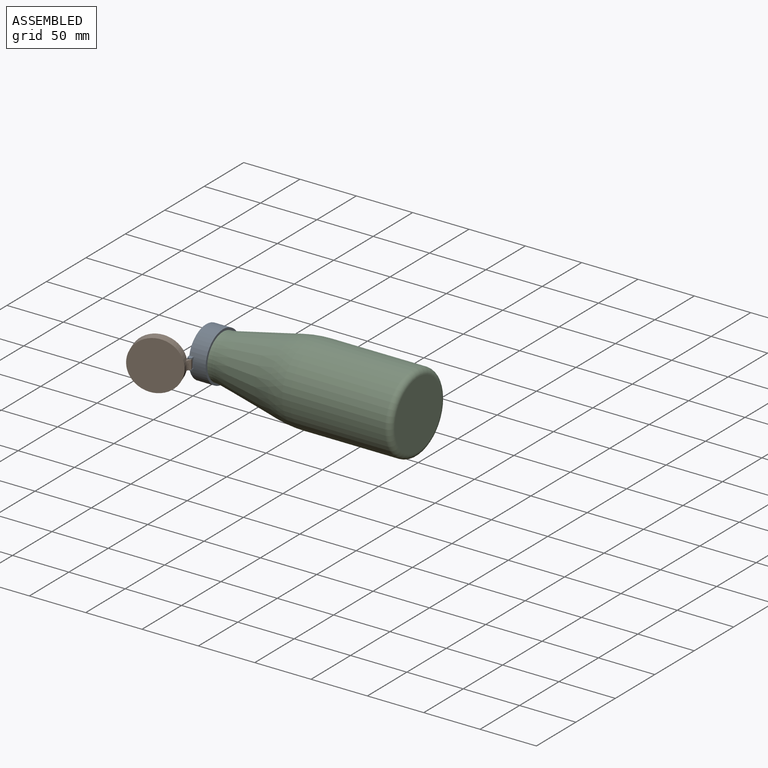
[diagram: assembled view]
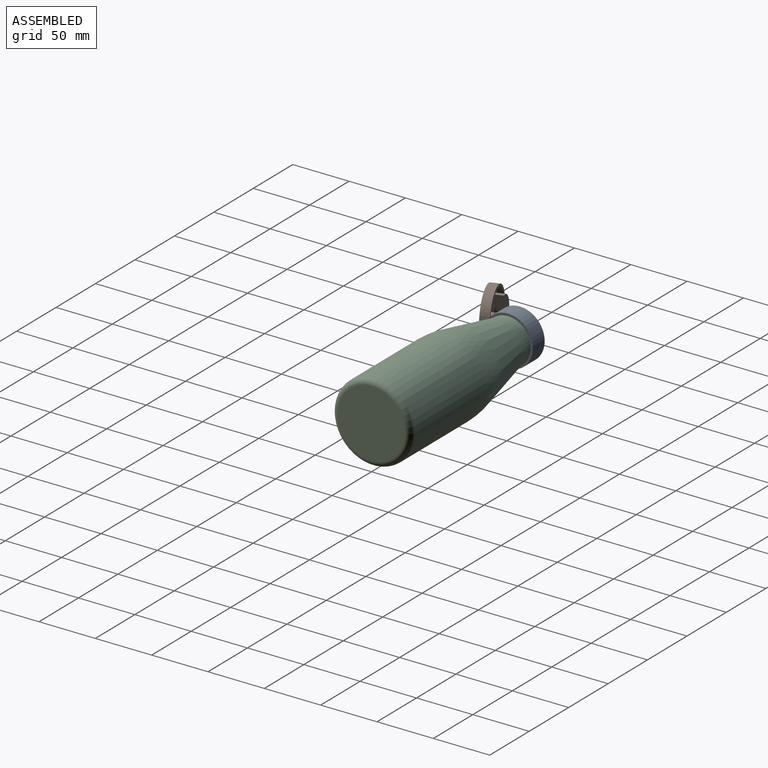
[diagram: assembled view, second angle]
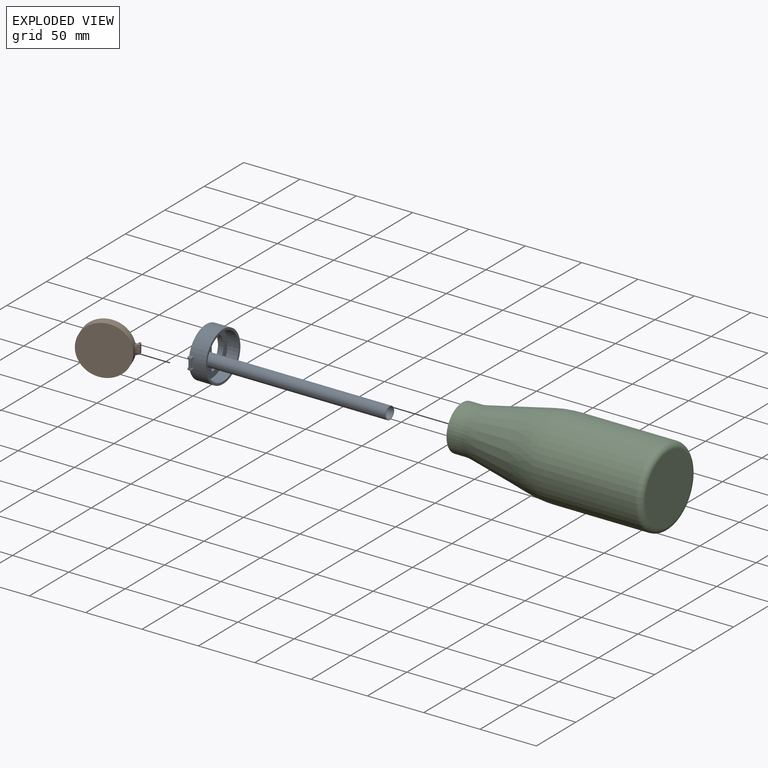
[diagram: exploded view]
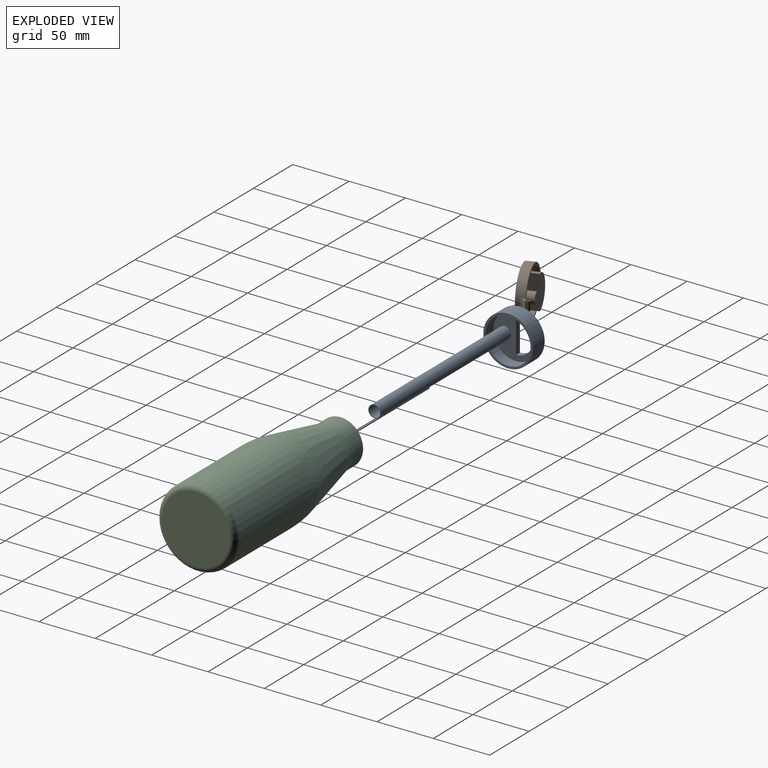
[diagram: exploded view, second angle]
ASSEMBLY  parts=3 mates=2
PART A: 20 faces, bbox 44x47x170 mm
  f0: plane 45x44mm, normal (0,0,1), area 1092.5mm2, adj f3,f4,f5,f6,f11,f12,f14,f15
  f1: plane 5x1.58mm, normal (0,0,-1), area 2mm2, adj f4,f11,f14,f15,f19
  f2: plane 40x40mm, normal (0,0,-1), area 808.2mm2, adj f3,f6,f7,f9
  f3: plane 30x5mm, normal (0,-1,0), area 150mm2, adj f0,f2,f6
  f4: cylinder r=22mm len=44mm, axis (0,0,-1), area 2033.1mm2, adj f0,f1,f8,f11,f12,f13
  f5: cylinder r=5mm len=170mm, axis (0,0,-1), area 5340.7mm2, adj f0,f10
  f6: cylinder r=15mm len=30mm, axis (0,0,-1), area 235.6mm2, adj f0,f2,f3
  f7: cylinder r=20mm len=40mm, axis (0,0,1), area 1256.6mm2, adj f2,f8
  f8: plane 44x44mm, normal (0,0,-1), area 263.9mm2, adj f4,f7
  f9: cylinder r=5.5mm len=165mm, axis (0,0,1), area 5702mm2, adj f2,f10
  f10: plane 11x11mm, normal (0,0,-1), area 16.5mm2, adj f5,f9
  f11: plane 4x3.58mm, normal (-1,0,0), area 12.6mm2, adj f0,f1,f4,f19
  f12: plane 4x3.58mm, normal (1,0,0), area 12.6mm2, adj f0,f4,f13,f18
  f13: plane 5x1.58mm, normal (0,0,-1), area 2mm2, adj f4,f12,f15,f16,f18
  f14: plane 4x3mm, normal (1,0,0), area 7.1mm2, adj f0,f1,f15,f17,f19
  f15: plane 8x4mm, normal (0,1,0), area 32mm2, adj f0,f1,f13,f14,f16
  f16: plane 4x3mm, normal (-1,0,0), area 7.1mm2, adj f0,f13,f15,f17,f18
  f17: cylinder r=1mm len=8mm, axis (-1,0,0), area 50.3mm2, adj f14,f16
  f18: cylinder r=2mm len=4mm, axis (1,0,0), area 6.3mm2, adj f0,f12,f13,f16
  f19: cylinder r=2mm len=4mm, axis (1,0,0), area 6.3mm2, adj f0,f1,f11,f14
PART B: 20 faces, bbox 44.1x47.1x13.1 mm
  f0: plane 8.88x3.5mm, normal (1,0,0), area 10.3mm2, adj f11,f12,f13,f14,f15,f16,f17,f18
  f1: plane 8.89x3.5mm, normal (-1,0,0), area 10.3mm2, adj f11,f12,f13,f14,f15,f16,f17,f18
  f2: plane 44x43.63mm, normal (0,0,1), area 261.9mm2, adj f9,f11,f16
  f3: plane 40x40mm, normal (0,0,1), area 824.7mm2, adj f4,f6,f7,f9
  f4: cylinder r=5mm len=10mm, axis (0,0,-1), area 314.2mm2, adj f3,f5
  f5: plane 10x10mm, normal (0,0,1), area 78.5mm2, adj f4
  f6: cylinder r=15mm len=30mm, axis (0,0,-1), area 471.2mm2, adj f3,f7,f8
  f7: plane 30x10mm, normal (0,1,0), area 300mm2, adj f3,f6,f8
  f8: plane 30x15mm, normal (0,0,1), area 353.4mm2, adj f6,f7
  f9: cylinder r=20mm len=40mm, axis (0,0,-1), area 628.3mm2, adj f2,f3
  f10: plane 44x44mm, normal (0,0,-1), area 1520.5mm2, adj f11
  f11: cylinder r=22mm len=44mm, axis (0,0,-1), area 1067.6mm2, adj f0,f1,f2,f10,f14
  f12: plane 8x2.39mm, normal (0,1,0), area 19mm2, adj f0,f1,f18,f19
  f13: plane 8x0.13mm, normal (0,0,1), area 1.1mm2, adj f0,f1,f17,f19
  f14: bspline ~12.66x4.89mm, area 42.5mm2, adj f0,f1,f11,f18
  f15: cylinder r=1mm len=8mm, axis (-1,0,0), area 28.8mm2, adj f0,f1,f16,f17
  f16: plane 8x1.68mm, normal (0,-0.51,0.86), area 15.7mm2, adj f0,f1,f2,f15
  f17: cylinder r=1mm len=8mm, axis (-1,0,0), area 13.4mm2, adj f0,f1,f13,f15
  f18: bspline ~11.37x0.97mm, area 8.5mm2, adj f0,f1,f12,f14
  f19: cylinder r=1mm len=8mm, axis (1,0,0), area 12.6mm2, adj f0,f1,f12,f13
PART C: 15 faces, bbox 75.8x194.5x75.8 mm
  f0: plane 60x60mm, normal (0,1,0), area 2827.4mm2, adj f1
  f1: torus R=30mm, axis (0,1,0), area 1637.5mm2, adj f0,f2
  f2: cylinder r=35mm len=84.41mm, axis (0,1,0), area 18561.8mm2, adj f1,f3
  f3: revolved ~70x70mm, area 4543.9mm2, adj f2,f4
  f4: cone r=32.78mm half-angle=12.1deg, axis (0,1,0), area 9707.8mm2, adj f3,f5
  f5: torus R=50mm, axis (0,1,0), area 804.6mm2, adj f4,f6
  f6: cylinder r=20mm len=40mm, axis (0,1,0), area 1256.6mm2, adj f5,f7
  f7: plane 40x40mm, normal (0,-1,0), area 549.8mm2, adj f6,f8
  f8: cylinder r=15mm len=30mm, axis (0,1,0), area 992.4mm2, adj f7,f9
  f9: torus R=45mm, axis (0,1,0), area 605.7mm2, adj f8,f10
  f10: cone r=27.78mm half-angle=12.1deg, axis (0,1,0), area 7891.4mm2, adj f9,f11
  f11: revolved ~60x60mm, area 3880.7mm2, adj f10,f12
  f12: cylinder r=30mm len=78.88mm, axis (0,1,0), area 14867.8mm2, adj f11,f13
  f13: torus R=25mm, axis (0,1,0), area 1390.8mm2, adj f12,f14
  f14: plane 50x50mm, normal (0,-1,0), area 1963.5mm2, adj f13
PLACE A rot(axis=(0.71,0,-0.71),180deg) t=(-183.18,0,0)mm
PLACE B rot(axis=(-0.5,-0.71,-0.5),109.1deg) t=(-204.6,-40.95,0)mm
PLACE C rot(axis=(0.58,0.58,-0.58),120deg) t=(-5,0,0)mm
MATE revolute B.f15 <-> A.f17  axis (0,0,-1) through (-186.18,-23.5,-4)mm
MATE fastened A.f7 <-> C.f1  axis (1,0,0) through (-183.18,0,0)mm
